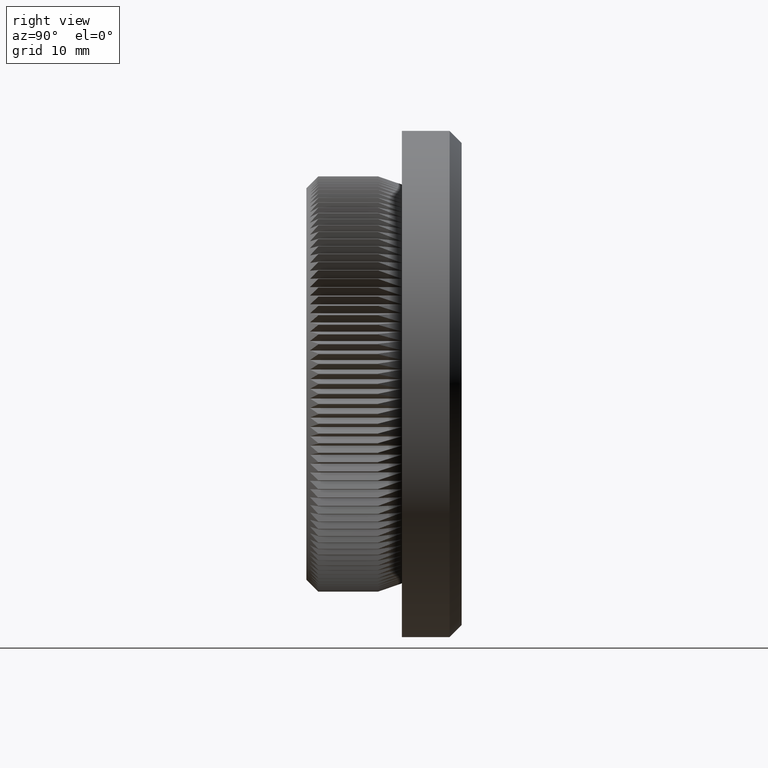
[diagram: clean part render]
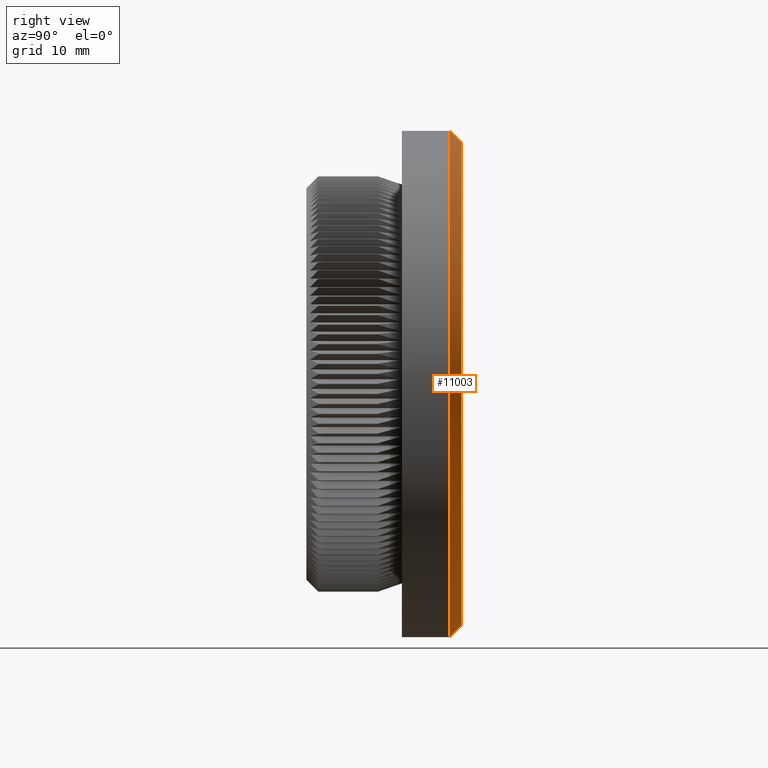
[diagram: same view with one face highlighted and labeled with its STEP entity id]
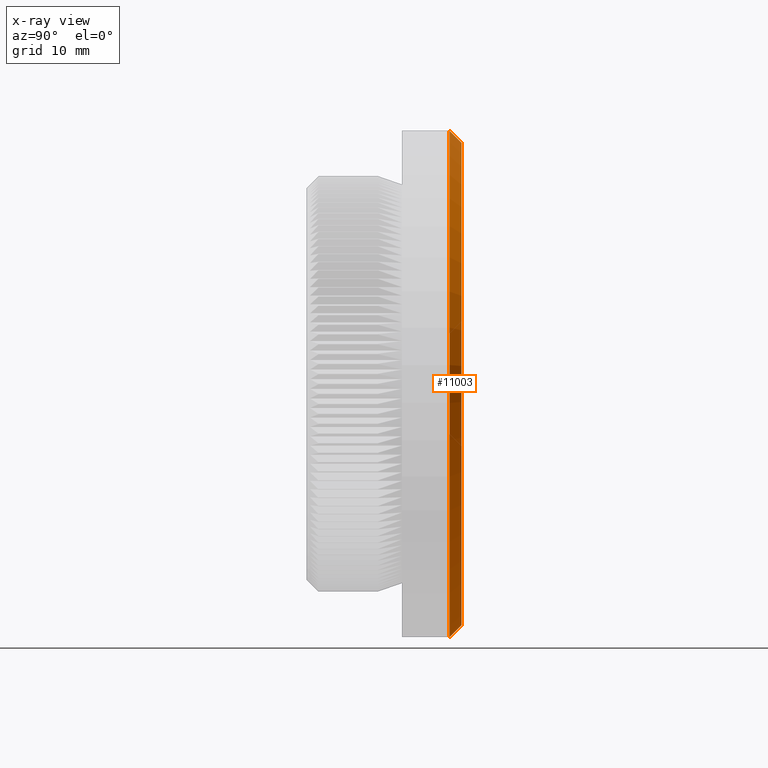
[diagram: x-ray of the same camera — body ghosted, the highlighted face saturated]
A machine part, right view. The second image highlights one B-rep face of the part: STEP entity #11003.
The next image is the same camera in x-ray: the body ghosted, the highlighted face saturated — about 0% of this face is hidden behind the body in this view.
In plain terms, the highlighted conical surface has half-angle 45 deg.
Its self-contained STEP definition (entity closure, byte-faithful):
#118 = VERTEX_POINT ( 'NONE', #30324 ) ;
#2402 = CARTESIAN_POINT ( 'NONE',  ( 0.0000000000000000000, 11.99999999999999800, 0.0000000000000000000 ) ) ;
#2833 = DIRECTION ( 'NONE',  ( -0.0000000000000000000, -1.000000000000000000, -0.0000000000000000000 ) ) ;
#4112 = VERTEX_POINT ( 'NONE', #24843 ) ;
#4644 = VECTOR ( 'NONE', #15698, 1000.000000000000100 ) ;
#5738 = AXIS2_PLACEMENT_3D ( 'NONE', #22310, #19650, #27145 ) ;
#5793 = EDGE_CURVE ( 'NONE', #8764, #32362, #30290, .T. ) ;
#8764 = VERTEX_POINT ( 'NONE', #17284 ) ;
#9343 = DIRECTION ( 'NONE',  ( 8.659560562354962400E-017, -0.7071067811865451300, 0.7071067811865500200 ) ) ;
#9980 = ORIENTED_EDGE ( 'NONE', *, *, #30376, .T. ) ;
#10109 = DIRECTION ( 'NONE',  ( 0.0000000000000000000, 0.0000000000000000000, 1.000000000000000000 ) ) ;
#11003 = ADVANCED_FACE ( 'NONE', ( #15892 ), #13504, .T. ) ;
#11016 = LINE ( 'NONE', #26875, #25994 ) ;
#11466 = EDGE_CURVE ( 'NONE', #32362, #118, #13887, .T. ) ;
#12088 = AXIS2_PLACEMENT_3D ( 'NONE', #19944, #19613, #12222 ) ;
#12222 = DIRECTION ( 'NONE',  ( 0.0000000000000000000, 0.0000000000000000000, -1.000000000000000000 ) ) ;
#13504 = CONICAL_SURFACE ( 'NONE', #12088, 21.19999999999999900, 0.7853981633974517200 ) ;
#13887 = CIRCLE ( 'NONE', #30068, 21.19999999999999900 ) ;
#15631 = ORIENTED_EDGE ( 'NONE', *, *, #21995, .F. ) ;
#15698 = DIRECTION ( 'NONE',  ( 0.0000000000000000000, -0.7071067811865451300, -0.7071067811865500200 ) ) ;
#15892 = FACE_OUTER_BOUND ( 'NONE', #17238, .T. ) ;
#16555 = ORIENTED_EDGE ( 'NONE', *, *, #11466, .F. ) ;
#17238 = EDGE_LOOP ( 'NONE', ( #15631, #9980, #16555, #17447 ) ) ;
#17284 = CARTESIAN_POINT ( 'NONE',  ( 0.0000000000000000000, 13.00000000000000000, -20.19999999999999200 ) ) ;
#17447 = ORIENTED_EDGE ( 'NONE', *, *, #5793, .F. ) ;
#19613 = DIRECTION ( 'NONE',  ( -0.0000000000000000000, -1.000000000000000000, -0.0000000000000000000 ) ) ;
#19650 = DIRECTION ( 'NONE',  ( 0.0000000000000000000, 1.000000000000000000, 0.0000000000000000000 ) ) ;
#19944 = CARTESIAN_POINT ( 'NONE',  ( 0.0000000000000000000, 11.99999999999999800, 0.0000000000000000000 ) ) ;
#21157 = CARTESIAN_POINT ( 'NONE',  ( 0.0000000000000000000, 11.99999999999999800, -21.19999999999999900 ) ) ;
#21995 = EDGE_CURVE ( 'NONE', #4112, #8764, #24375, .T. ) ;
#22310 = CARTESIAN_POINT ( 'NONE',  ( 0.0000000000000000000, 13.00000000000000000, 0.0000000000000000000 ) ) ;
#24375 = CIRCLE ( 'NONE', #5738, 20.19999999999999200 ) ;
#24843 = CARTESIAN_POINT ( 'NONE',  ( 2.535018874235020400E-015, 13.00000000000000000, 20.19999999999999200 ) ) ;
#25994 = VECTOR ( 'NONE', #9343, 1000.000000000000100 ) ;
#26875 = CARTESIAN_POINT ( 'NONE',  ( 2.596251214192388800E-015, 11.99999999999999800, 21.19999999999999900 ) ) ;
#27145 = DIRECTION ( 'NONE',  ( 0.0000000000000000000, 0.0000000000000000000, 1.000000000000000000 ) ) ;
#28505 = CARTESIAN_POINT ( 'NONE',  ( 0.0000000000000000000, 11.99999999999999800, -21.19999999999999900 ) ) ;
#30068 = AXIS2_PLACEMENT_3D ( 'NONE', #2402, #2833, #10109 ) ;
#30290 = LINE ( 'NONE', #28505, #4644 ) ;
#30324 = CARTESIAN_POINT ( 'NONE',  ( 2.596251214192388800E-015, 11.99999999999999800, 21.19999999999999900 ) ) ;
#30376 = EDGE_CURVE ( 'NONE', #4112, #118, #11016, .T. ) ;
#32362 = VERTEX_POINT ( 'NONE', #21157 ) ;